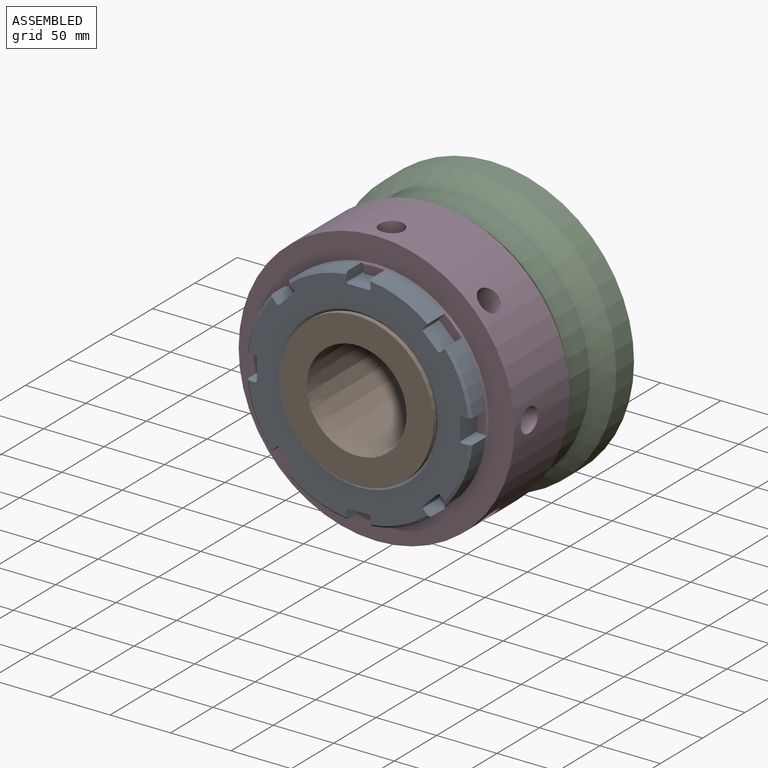
[diagram: assembled view]
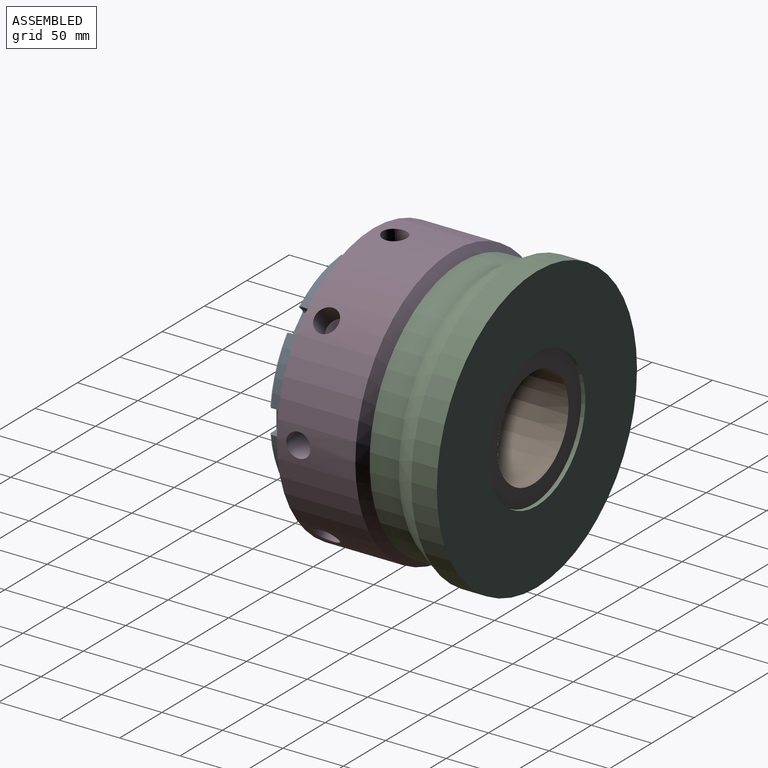
[diagram: assembled view, second angle]
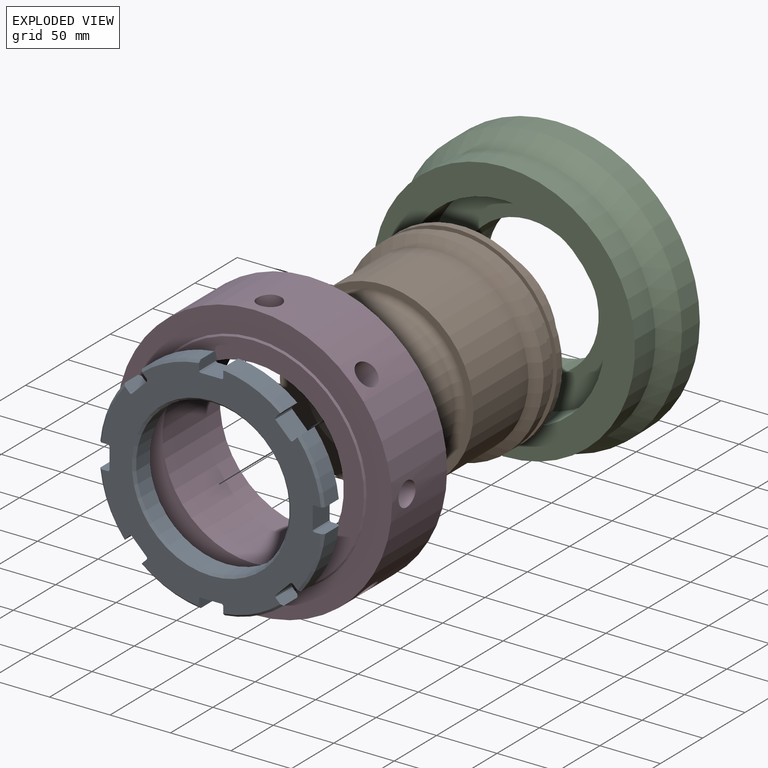
[diagram: exploded view]
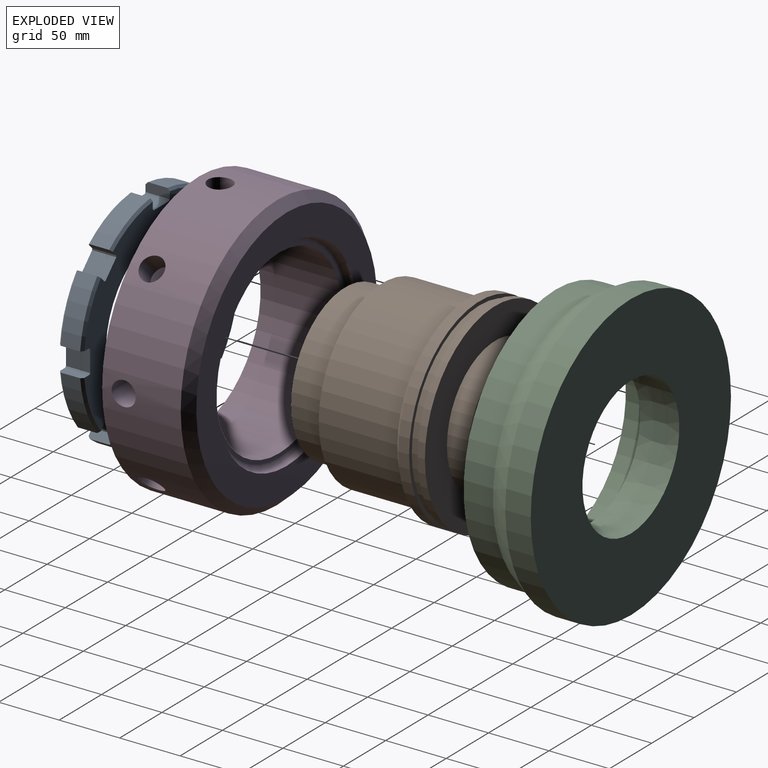
[diagram: exploded view, second angle]
ASSEMBLY  parts=4 mates=6
PART A: 69 faces, bbox 185.9x20x185.9 mm
  f0: cone r=93.5mm half-angle=45deg, axis (0,1,0), area 148.8mm2, adj f3,f8,f10,f43
  f1: cone r=91.5mm half-angle=45deg, axis (0,-1,0), area 148.8mm2, adj f2,f4,f44,f51
  f2: cylinder r=93.5mm len=48.66mm, axis (0,1,0), area 854.3mm2, adj f1,f4,f46,f51
  f3: plane 20x5.63mm, normal (-0.71,0,0.71), area 155.3mm2, adj f0,f7,f8,f43,f44,f54
  f4: plane 20x5.63mm, normal (0.71,0,-0.71), area 155.3mm2, adj f1,f2,f43,f44,f46,f53
  f5: plane 20x12.73mm, normal (0.71,0,0.71), area 360mm2, adj f43,f44,f53,f54
  f6: cone r=93.5mm half-angle=45deg, axis (0,1,0), area 148.8mm2, adj f9,f14,f16,f43
  f7: cone r=91.5mm half-angle=45deg, axis (0,-1,0), area 148.8mm2, adj f3,f8,f10,f44
  f8: cylinder r=93.5mm len=48.66mm, axis (0,1,0), area 854.3mm2, adj f0,f3,f7,f10
  f9: plane 20x7.97mm, normal (0,0,1), area 155.3mm2, adj f6,f13,f14,f43,f44,f56
  f10: plane 20x7.97mm, normal (0,0,-1), area 155.3mm2, adj f0,f7,f8,f43,f44,f55
  f11: plane 20x18mm, normal (1,0,0), area 360mm2, adj f43,f44,f55,f56
  f12: cone r=93.5mm half-angle=45deg, axis (0,1,0), area 148.8mm2, adj f15,f20,f22,f43
  f13: cone r=91.5mm half-angle=45deg, axis (0,-1,0), area 148.8mm2, adj f9,f14,f16,f44
  f14: cylinder r=93.5mm len=48.66mm, axis (0,1,0), area 854.3mm2, adj f6,f9,f13,f16
  f15: plane 20x5.63mm, normal (0.71,0,0.71), area 155.3mm2, adj f12,f19,f20,f43,f44,f58
  f16: plane 20x5.63mm, normal (-0.71,0,-0.71), area 155.3mm2, adj f6,f13,f14,f43,f44,f57
  f17: plane 20x12.73mm, normal (0.71,0,-0.71), area 360mm2, adj f43,f44,f57,f58
  f18: cone r=93.5mm half-angle=45deg, axis (0,1,0), area 148.8mm2, adj f21,f26,f28,f43
  f19: cone r=91.5mm half-angle=45deg, axis (0,-1,0), area 148.8mm2, adj f15,f20,f22,f44
  f20: cylinder r=93.5mm len=48.66mm, axis (0,1,0), area 854.3mm2, adj f12,f15,f19,f22
  f21: plane 20x7.97mm, normal (1,0,0), area 155.3mm2, adj f18,f25,f26,f43,f44,f60
  f22: plane 20x7.97mm, normal (-1,0,0), area 155.3mm2, adj f12,f19,f20,f43,f44,f59
  f23: plane 20x18mm, normal (0,0,-1), area 360mm2, adj f43,f44,f59,f60
  f24: cone r=93.5mm half-angle=45deg, axis (0,1,0), area 148.8mm2, adj f27,f32,f34,f43
  f25: cone r=91.5mm half-angle=45deg, axis (0,-1,0), area 148.8mm2, adj f21,f26,f28,f44
  f26: cylinder r=93.5mm len=48.66mm, axis (0,1,0), area 854.3mm2, adj f18,f21,f25,f28
  f27: plane 20x5.63mm, normal (0.71,0,-0.71), area 155.3mm2, adj f24,f31,f32,f43,f44,f62
  f28: plane 20x5.63mm, normal (-0.71,0,0.71), area 155.3mm2, adj f18,f25,f26,f43,f44,f61
  f29: plane 20x12.73mm, normal (-0.71,0,-0.71), area 360mm2, adj f43,f44,f61,f62
  f30: cone r=93.5mm half-angle=45deg, axis (0,1,0), area 148.8mm2, adj f33,f38,f40,f43
  f31: cone r=91.5mm half-angle=45deg, axis (0,-1,0), area 148.8mm2, adj f27,f32,f34,f44
  f32: cylinder r=93.5mm len=48.66mm, axis (0,1,0), area 854.3mm2, adj f24,f27,f31,f34
  f33: plane 20x7.97mm, normal (0,0,-1), area 155.3mm2, adj f30,f37,f38,f43,f44,f64
  f34: plane 20x7.97mm, normal (0,0,1), area 155.3mm2, adj f24,f31,f32,f43,f44,f63
  f35: plane 20x18mm, normal (-1,0,0), area 360mm2, adj f43,f44,f63,f64
  f36: cone r=93.5mm half-angle=45deg, axis (0,1,0), area 148.8mm2, adj f39,f42,f43,f52
  f37: cone r=91.5mm half-angle=45deg, axis (0,-1,0), area 148.8mm2, adj f33,f38,f40,f44
  f38: cylinder r=93.5mm len=48.66mm, axis (0,1,0), area 854.3mm2, adj f30,f33,f37,f40
  f39: plane 20x5.63mm, normal (-0.71,0,-0.71), area 155.3mm2, adj f36,f42,f43,f44,f45,f65
  f40: plane 20x5.63mm, normal (0.71,0,0.71), area 155.3mm2, adj f30,f37,f38,f43,f44,f66
  f41: plane 20x12.73mm, normal (-0.71,0,0.71), area 360mm2, adj f43,f44,f65,f66
  f42: cylinder r=93.5mm len=48.66mm, axis (0,1,0), area 854.3mm2, adj f36,f39,f45,f52
  f43: plane 181.9x181.9mm, normal (0,-1,0), area 11661.2mm2, adj f0,f3,f4,f5,f6,f9,f10,f11
  f44: plane 181.9x181.9mm, normal (0,1,0), area 11661.2mm2, adj f1,f3,f4,f5,f7,f9,f10,f11
  f45: cone r=91.5mm half-angle=45deg, axis (0,-1,0), area 148.8mm2, adj f39,f42,f44,f52
  f46: cone r=93.5mm half-angle=45deg, axis (0,1,0), area 148.8mm2, adj f2,f4,f43,f51
  f47: cylinder r=63.5mm len=127mm, axis (0,1,0), area 6383.7mm2, adj f48,f49
  f48: cone r=63.5mm half-angle=45deg, axis (0,1,0), area 1146.3mm2, adj f44,f47
  f49: cone r=65.5mm half-angle=45deg, axis (0,-1,0), area 1146.3mm2, adj f43,f47
  f50: plane 20x18mm, normal (0,0,1), area 360mm2, adj f43,f44,f67,f68
  f51: plane 20x7.97mm, normal (-1,0,0), area 155.3mm2, adj f1,f2,f43,f44,f46,f67
  f52: plane 20x7.97mm, normal (1,0,0), area 155.3mm2, adj f36,f42,f43,f44,f45,f68
  f53: plane 20x1.41mm, normal (1,0,0), area 28.3mm2, adj f4,f5,f43,f44
  f54: plane 20x1.41mm, normal (0,0,1), area 28.3mm2, adj f3,f5,f43,f44
  f55: plane 20x1mm, normal (0.71,0,-0.71), area 28.3mm2, adj f10,f11,f43,f44
  f56: plane 20x1mm, normal (0.71,0,0.71), area 28.3mm2, adj f9,f11,f43,f44
  f57: plane 20x1.41mm, normal (0,0,-1), area 28.3mm2, adj f16,f17,f43,f44
  f58: plane 20x1.41mm, normal (1,0,0), area 28.3mm2, adj f15,f17,f43,f44
  f59: plane 20x1mm, normal (-0.71,0,-0.71), area 28.3mm2, adj f22,f23,f43,f44
  f60: plane 20x1mm, normal (0.71,0,-0.71), area 28.3mm2, adj f21,f23,f43,f44
  f61: plane 20x1.41mm, normal (-1,0,0), area 28.3mm2, adj f28,f29,f43,f44
  f62: plane 20x1.41mm, normal (0,0,-1), area 28.3mm2, adj f27,f29,f43,f44
  f63: plane 20x1mm, normal (-0.71,0,0.71), area 28.3mm2, adj f34,f35,f43,f44
  f64: plane 20x1mm, normal (-0.71,0,-0.71), area 28.3mm2, adj f33,f35,f43,f44
  f65: plane 20x1.41mm, normal (-1,0,0), area 28.3mm2, adj f39,f41,f43,f44
  f66: plane 20x1.41mm, normal (0,0,1), area 28.3mm2, adj f40,f41,f43,f44
  f67: plane 20x1mm, normal (-0.71,0,0.71), area 28.3mm2, adj f43,f44,f50,f51
  f68: plane 20x1mm, normal (0.71,0,0.71), area 28.3mm2, adj f43,f44,f50,f52
PART B: 19 faces, bbox 166x155.6x166 mm
  f0: torus R=69.5mm, axis (0,1,0), area 3889.4mm2, adj f1,f18
  f1: cylinder r=63.5mm len=127mm, axis (0,1,0), area 9921.9mm2, adj f0,f2
  f2: plane 127x127mm, normal (0,-1,0), area 7309.3mm2, adj f1,f3
  f3: cone r=41.3mm half-angle=0.2deg, axis (0,1,0), area 40666.1mm2, adj f2,f4
  f4: plane 114x114mm, normal (0,1,0), area 4688.9mm2, adj f3,f5
  f5: cylinder r=57mm len=114mm, axis (0,1,0), area 2484.5mm2, adj f4,f6
  f6: plane 114x114mm, normal (0,-1,0), area 2032.2mm2, adj f5,f7
  f7: cylinder r=51.01mm len=102.02mm, axis (0,1,0), area 2043.3mm2, adj f6,f8
  f8: plane 114x114mm, normal (0,1,0), area 2032.2mm2, adj f7,f9
  f9: cylinder r=57mm len=114mm, axis (0,1,0), area 6434.5mm2, adj f8,f10
  f10: plane 166x166mm, normal (0,1,0), area 11435.4mm2, adj f9,f11
  f11: cylinder r=83mm len=166mm, axis (0,1,0), area 3129mm2, adj f10,f12
  f12: plane 166x166mm, normal (0,-1,0), area 1592.1mm2, adj f11,f13
  f13: cylinder r=79.89mm len=159.78mm, axis (0,1,0), area 3534.2mm2, adj f12,f14
  f14: plane 166x166mm, normal (0,1,0), area 1592.1mm2, adj f13,f15
  f15: cylinder r=83mm len=166mm, axis (0,1,0), area 4693.5mm2, adj f14,f16
  f16: cone r=83mm half-angle=51.4deg, axis (0,1,0), area 5077.6mm2, adj f15,f17
  f17: cylinder r=75mm len=150mm, axis (0,1,0), area 30630.5mm2, adj f16,f18
  f18: plane 150x150mm, normal (0,-1,0), area 2496.8mm2, adj f0,f17
PART C: 8 faces, bbox 236.4x62.5x236.4 mm
  f0: cone r=57.31mm half-angle=0.2deg, axis (0,-1,0), area 11696.4mm2, adj f1,f7
  f1: plane 236.43x236.43mm, normal (0,1,0), area 33617.9mm2, adj f0,f2
  f2: cylinder r=118.21mm len=236.43mm, axis (0,1,0), area 15650.6mm2, adj f1,f3
  f3: cone r=118.21mm half-angle=30deg, axis (0,1,0), area 14094.9mm2, adj f2,f4
  f4: cylinder r=108.31mm len=216.62mm, axis (0,1,0), area 16527.1mm2, adj f3,f5
  f5: plane 216.62x216.62mm, normal (0,-1,0), area 15049.7mm2, adj f4,f6
  f6: cylinder r=83.31mm len=166.62mm, axis (0,1,0), area 15703.4mm2, adj f5,f7
  f7: plane 166.62x166.62mm, normal (0,-1,0), area 11485.9mm2, adj f0,f6
PART D: 26 faces, bbox 228x74.1x228 mm
  f0: cone r=0mm half-angle=59deg, axis (0.71,0,0.71), area 366.5mm2, adj f1
  f1: cylinder r=10mm len=28.28mm, axis (0.71,0,0.71), area 1242.8mm2, adj f0,f14
  f2: cone r=0mm half-angle=59deg, axis (1,0,0), area 366.5mm2, adj f3
  f3: cylinder r=10mm len=20mm, axis (1,0,0), area 1242.8mm2, adj f2,f14
  f4: cone r=0mm half-angle=59deg, axis (0.71,0,-0.71), area 366.5mm2, adj f5
  f5: cylinder r=10mm len=28.28mm, axis (0.71,0,-0.71), area 1242.8mm2, adj f4,f14
  f6: cone r=0mm half-angle=59deg, axis (0,0,-1), area 366.5mm2, adj f7
  f7: cylinder r=10mm len=20mm, axis (0,0,-1), area 1242.8mm2, adj f6,f14
  f8: cone r=0mm half-angle=59deg, axis (-0.71,0,-0.71), area 366.5mm2, adj f9
  f9: cylinder r=10mm len=28.28mm, axis (-0.71,0,-0.71), area 1242.8mm2, adj f8,f14
  f10: cone r=0mm half-angle=59deg, axis (-1,0,0), area 366.5mm2, adj f11
  f11: cylinder r=10mm len=20mm, axis (-1,0,0), area 1242.8mm2, adj f10,f14
  f12: cone r=0mm half-angle=59deg, axis (-0.71,0,0.71), area 366.5mm2, adj f13
  f13: cylinder r=10mm len=28.28mm, axis (-0.71,0,0.71), area 1242.8mm2, adj f12,f14
  f14: cylinder r=114mm len=228mm, axis (0,1,0), area 44052.1mm2, adj f1,f3,f5,f7,f9,f11,f13,f15
  f15: plane 228x228mm, normal (0,-1,0), area 13656.5mm2, adj f14,f22
  f16: plane 183.39x183.39mm, normal (0,-1,0), area 8743.8mm2, adj f17,f22
  f17: cylinder r=75mm len=150mm, axis (0,1,0), area 31997.9mm2, adj f16,f18
  f18: plane 155.63x155.63mm, normal (0,1,0), area 1350.8mm2, adj f17,f23
  f19: cylinder r=82.81mm len=165.63mm, axis (0,1,0), area 627mm2, adj f20,f23
  f20: plane 213.43x213.43mm, normal (0,1,0), area 14231.2mm2, adj f19,f21
  f21: cone r=114mm half-angle=43deg, axis (0,-1,0), area 7402.3mm2, adj f14,f20
  f22: cone r=93mm half-angle=45deg, axis (0,1,0), area 1069.6mm2, adj f15,f16
  f23: torus R=77.81mm, axis (0,-1,0), area 3997mm2, adj f18,f19
  f24: cylinder r=10mm len=20mm, axis (0,0,1), area 1242.8mm2, adj f14,f25
  f25: cone r=0mm half-angle=59deg, axis (0,0,1), area 366.5mm2, adj f24
PLACE A t=(0,0.35,0)mm
PLACE B rot(axis=(0,1,0),90deg) t=(0,2.02,0)mm
PLACE C at identity fixed
PLACE D t=(0,-0.37,0)mm
MATE cylindrical A.f0 <-> B.f0  axis (0,-1,0) through (0,-156.62,0)mm
MATE fastened D.f14 <-> C.f0  axis (0,1,0) through (0,-62.51,0)mm
MATE fastened D.f14 <-> A.f0  axis (0,-1,0) through (0,-136.62,0)mm
MATE cylindrical B.f0 <-> C.f0  axis (0,1,0) through (0,-3.23,0)mm
MATE fastened C.f0 <-> B.f0  axis (0,-1,0) through (0,-32.51,0)mm
MATE cylindrical D.f14 <-> B.f0  axis (0,1,0) through (0,-68.71,0)mm
